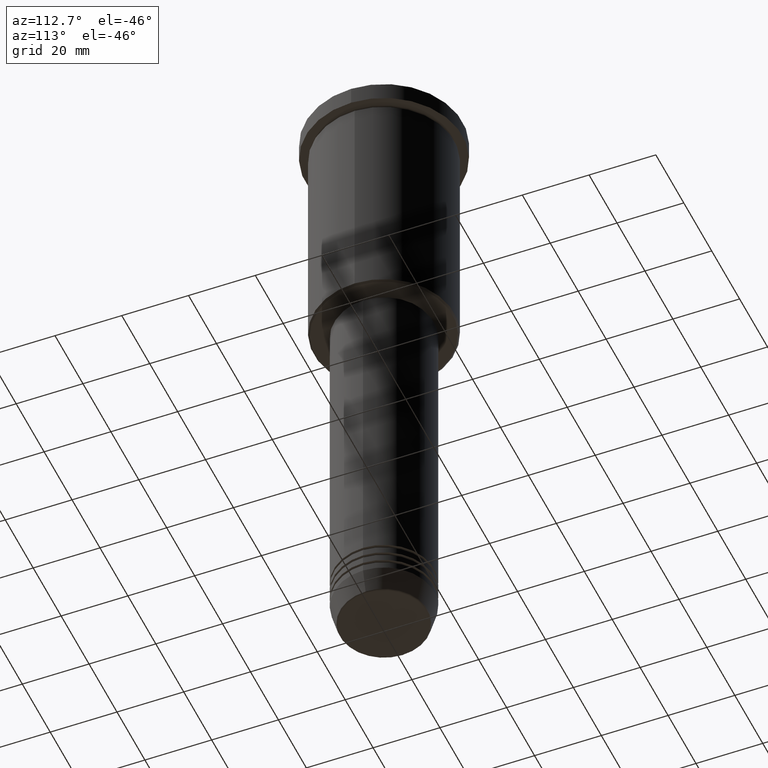
[diagram: clean part render]
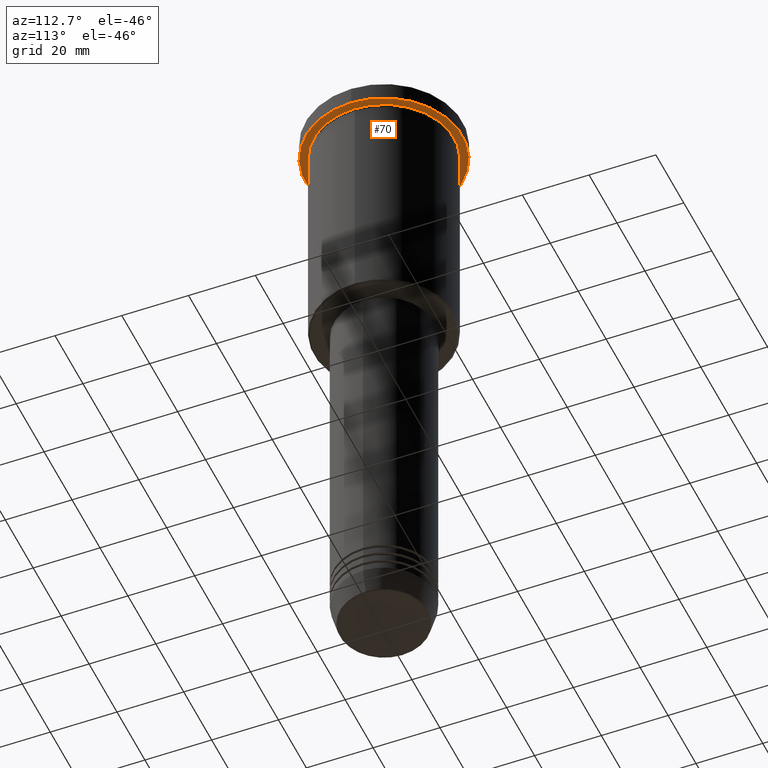
[diagram: same view with one face highlighted and labeled with its STEP entity id]
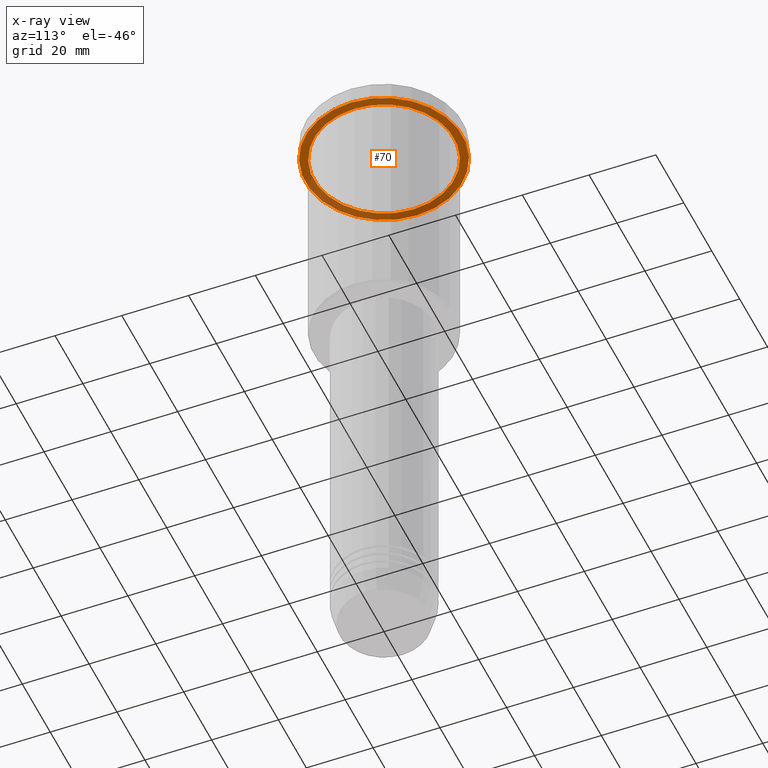
[diagram: x-ray of the same camera — body ghosted, the highlighted face saturated]
A machine part, auxiliary view. The second image highlights one B-rep face of the part: STEP entity #70.
The next image is the same camera in x-ray: the body ghosted, the highlighted face saturated — about 37% of this face is hidden behind the body in this view.
In plain terms, the highlighted planar face has unit normal (0, 0, -1).
Its self-contained STEP definition (entity closure, byte-faithful):
#70 = ADVANCED_FACE ( 'NONE', ( #560, #576 ), #587, .T. ) ;
#85 = EDGE_CURVE ( 'NONE', #431, #258, #909, .T. ) ;
#124 = CARTESIAN_POINT ( 'NONE',  ( 0.000000000000000000, 0.000000000000000000, -5.999999999999994671 ) ) ;
#168 = CARTESIAN_POINT ( 'NONE',  ( 0.000000000000000000, 0.000000000000000000, -5.999999999999994671 ) ) ;
#208 = CARTESIAN_POINT ( 'NONE',  ( 0.000000000000000000, 23.50000000000000000, -5.999999999999994671 ) ) ;
#230 = AXIS2_PLACEMENT_3D ( 'NONE', #421, #436, #1050 ) ;
#239 = EDGE_CURVE ( 'NONE', #329, #605, #507, .T. ) ;
#258 = VERTEX_POINT ( 'NONE', #300 ) ;
#261 = AXIS2_PLACEMENT_3D ( 'NONE', #208, #739, #928 ) ;
#300 = CARTESIAN_POINT ( 'NONE',  ( -23.50000000000000000, 2.877919977996280320E-15, -5.999999999999994671 ) ) ;
#329 = VERTEX_POINT ( 'NONE', #563 ) ;
#421 = CARTESIAN_POINT ( 'NONE',  ( 0.000000000000000000, 0.000000000000000000, -5.999999999999994671 ) ) ;
#431 = VERTEX_POINT ( 'NONE', #1134 ) ;
#432 = AXIS2_PLACEMENT_3D ( 'NONE', #611, #992, #633 ) ;
#436 = DIRECTION ( 'NONE',  ( -0.000000000000000000, -0.000000000000000000, 1.000000000000000000 ) ) ;
#453 = ORIENTED_EDGE ( 'NONE', *, *, #1009, .F. ) ;
#464 = DIRECTION ( 'NONE',  ( -0.000000000000000000, -0.000000000000000000, 1.000000000000000000 ) ) ;
#466 = AXIS2_PLACEMENT_3D ( 'NONE', #168, #623, #598 ) ;
#480 = EDGE_LOOP ( 'NONE', ( #526, #453 ) ) ;
#507 = CIRCLE ( 'NONE', #432, 21.00000000000000000 ) ;
#526 = ORIENTED_EDGE ( 'NONE', *, *, #85, .F. ) ;
#560 = FACE_BOUND ( 'NONE', #975, .T. ) ;
#563 = CARTESIAN_POINT ( 'NONE',  ( 21.00000000000000000, 2.571758278209441661E-15, -5.999999999999994671 ) ) ;
#569 = DIRECTION ( 'NONE',  ( 1.000000000000000000, 0.000000000000000000, 0.000000000000000000 ) ) ;
#576 = FACE_OUTER_BOUND ( 'NONE', #480, .T. ) ;
#587 = PLANE ( 'NONE',  #261 ) ;
#598 = DIRECTION ( 'NONE',  ( -1.000000000000000000, 0.000000000000000000, 0.000000000000000000 ) ) ;
#605 = VERTEX_POINT ( 'NONE', #671 ) ;
#611 = CARTESIAN_POINT ( 'NONE',  ( 0.000000000000000000, 0.000000000000000000, -5.999999999999994671 ) ) ;
#615 = ORIENTED_EDGE ( 'NONE', *, *, #239, .T. ) ;
#623 = DIRECTION ( 'NONE',  ( -0.000000000000000000, -0.000000000000000000, 1.000000000000000000 ) ) ;
#633 = DIRECTION ( 'NONE',  ( -1.000000000000000000, 0.000000000000000000, 0.000000000000000000 ) ) ;
#671 = CARTESIAN_POINT ( 'NONE',  ( -21.00000000000000000, 0.000000000000000000, -5.999999999999994671 ) ) ;
#739 = DIRECTION ( 'NONE',  ( 0.000000000000000000, 0.000000000000000000, -1.000000000000000000 ) ) ;
#743 = ORIENTED_EDGE ( 'NONE', *, *, #1005, .T. ) ;
#799 = CIRCLE ( 'NONE', #230, 23.50000000000000000 ) ;
#841 = CIRCLE ( 'NONE', #466, 21.00000000000000000 ) ;
#909 = CIRCLE ( 'NONE', #1037, 23.50000000000000000 ) ;
#928 = DIRECTION ( 'NONE',  ( -1.000000000000000000, 0.000000000000000000, -0.000000000000000000 ) ) ;
#975 = EDGE_LOOP ( 'NONE', ( #743, #615 ) ) ;
#992 = DIRECTION ( 'NONE',  ( -0.000000000000000000, -0.000000000000000000, 1.000000000000000000 ) ) ;
#1005 = EDGE_CURVE ( 'NONE', #605, #329, #841, .T. ) ;
#1009 = EDGE_CURVE ( 'NONE', #258, #431, #799, .T. ) ;
#1037 = AXIS2_PLACEMENT_3D ( 'NONE', #124, #464, #569 ) ;
#1050 = DIRECTION ( 'NONE',  ( 1.000000000000000000, 0.000000000000000000, 0.000000000000000000 ) ) ;
#1134 = CARTESIAN_POINT ( 'NONE',  ( 23.50000000000000000, 0.000000000000000000, -5.999999999999994671 ) ) ;